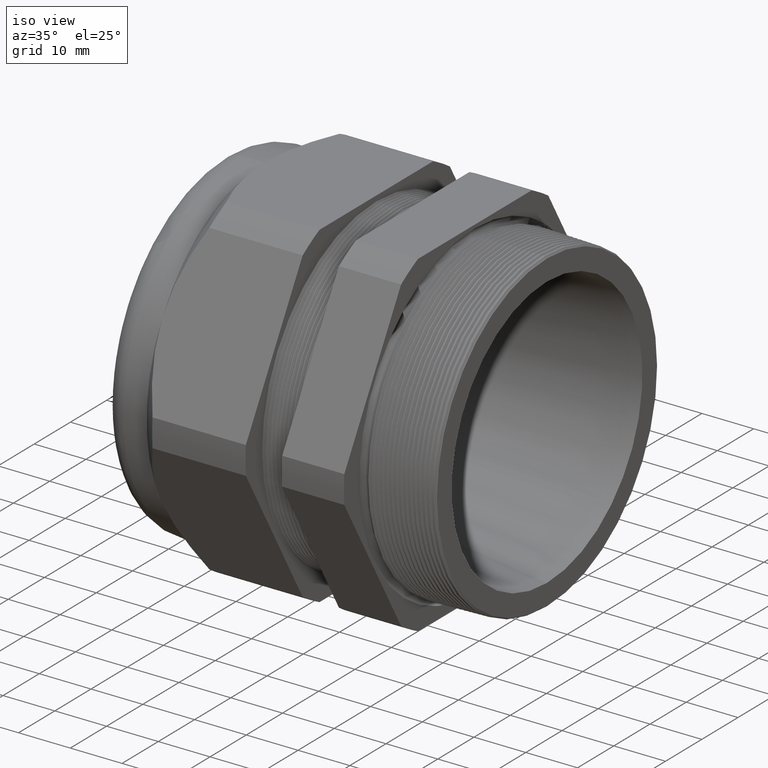
[diagram: clean part render]
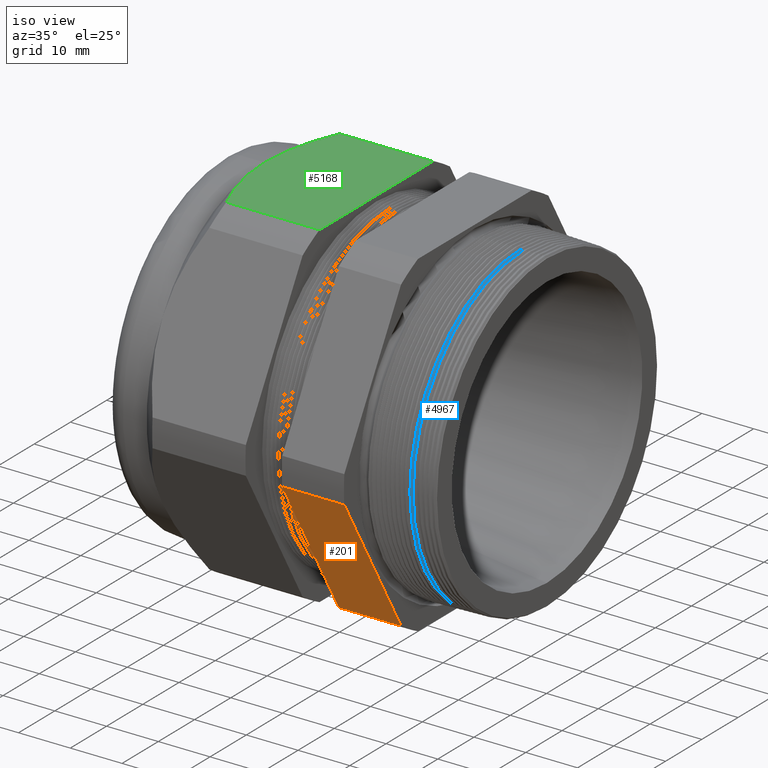
[diagram: same view with three faces highlighted in distinct colors, each labeled with its STEP entity id]
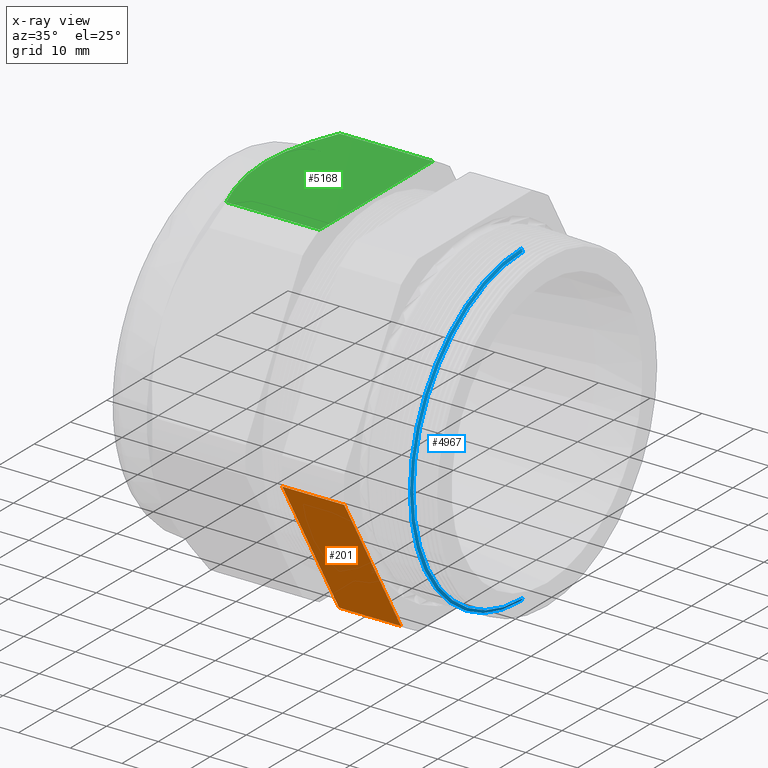
[diagram: x-ray of the same camera — body ghosted, the three highlighted faces saturated]
A machine part, iso view with three faces highlighted in distinct colors.
The next image is the same camera in x-ray (body ghosted, the three faces saturated) — at least one of them is partly hidden behind the body in this view.
Their STEP definitions:

[orange] entity #201 — the highlighted planar face has unit normal (0, -0.866, -0.5).
#180 = VERTEX_POINT ( 'NONE', #734 ) ;
#193 = VERTEX_POINT ( 'NONE', #712 ) ;
#194 = ORIENTED_EDGE ( 'NONE', *, *, #195, .F. ) ;
#195 = EDGE_CURVE ( 'NONE', #180, #193, #711, .T. ) ;
#196 = EDGE_LOOP ( 'NONE', ( #200, #199, #197, #194 ) ) ;
#197 = ORIENTED_EDGE ( 'NONE', *, *, #198, .T. ) ;
#198 = EDGE_CURVE ( 'NONE', #4686, #193, #770, .T. ) ;
#199 = ORIENTED_EDGE ( 'NONE', *, *, #4679, .F. ) ;
#200 = ORIENTED_EDGE ( 'NONE', *, *, #4412, .F. ) ;
#201 = ADVANCED_FACE ( 'NONE', ( #766 ), #765, .T. ) ;
#711 = LINE ( 'NONE', #773, #772 ) ;
#712 = CARTESIAN_POINT ( 'NONE',  ( -0.7824400000000001400, -1.416843767287496500, -0.1059546086707604700 ) ) ;
#734 = CARTESIAN_POINT ( 'NONE',  ( -0.7824400000000001400, -0.8001812664006651100, -1.174045391329239900 ) ) ;
#761 = DIRECTION ( 'NONE',  ( 0.0000000000000000000, 0.5000000000000000000, -0.8660254037844386000 ) ) ;
#762 = DIRECTION ( 'NONE',  ( 0.0000000000000000000, -0.8660254037844387100, -0.5000000000000001100 ) ) ;
#763 = CARTESIAN_POINT ( 'NONE',  ( 0.2400000000000001900, -0.8001812664006655600, -1.174045391329239500 ) ) ;
#764 = AXIS2_PLACEMENT_3D ( 'NONE', #763, #762, #761 ) ;
#765 = PLANE ( 'NONE',  #764 ) ;
#766 = FACE_OUTER_BOUND ( 'NONE', #196, .T. ) ;
#767 = DIRECTION ( 'NONE',  ( -1.000000000000000000, 0.0000000000000000000, 0.0000000000000000000 ) ) ;
#768 = VECTOR ( 'NONE', #767, 39.37007874015748100 ) ;
#769 = CARTESIAN_POINT ( 'NONE',  ( 0.2400000000000001900, -1.416843767287496500, -0.1059546086707604700 ) ) ;
#770 = LINE ( 'NONE', #769, #768 ) ;
#771 = DIRECTION ( 'NONE',  ( 0.0000000000000000000, -0.5000000000000000000, 0.8660254037844386000 ) ) ;
#772 = VECTOR ( 'NONE', #771, 39.37007874015748100 ) ;
#773 = CARTESIAN_POINT ( 'NONE',  ( -0.7824400000000001400, -0.4685125168440810200, -1.748512516844081400 ) ) ;
#1923 = LINE ( 'NONE', #2679, #4052 ) ;
#2200 = DIRECTION ( 'NONE',  ( -1.000000000000000000, 0.0000000000000000000, 0.0000000000000000000 ) ) ;
#2201 = VECTOR ( 'NONE', #2200, 39.37007874015748100 ) ;
#2202 = CARTESIAN_POINT ( 'NONE',  ( 0.2400000000000001900, -0.8001812664006651100, -1.174045391329239900 ) ) ;
#2203 = LINE ( 'NONE', #2202, #2201 ) ;
#2679 = CARTESIAN_POINT ( 'NONE',  ( -0.3100000000000000000, -0.4685125168440810200, -1.748512516844081400 ) ) ;
#2691 = CARTESIAN_POINT ( 'NONE',  ( -0.3100000000000000000, -0.8001812664006651100, -1.174045391329239900 ) ) ;
#2722 = CARTESIAN_POINT ( 'NONE',  ( -0.3100000000000000000, -1.416843767287496500, -0.1059546086707604700 ) ) ;
#4051 = DIRECTION ( 'NONE',  ( 0.0000000000000000000, 0.5000000000000000000, -0.8660254037844386000 ) ) ;
#4052 = VECTOR ( 'NONE', #4051, 39.37007874015748100 ) ;
#4412 = EDGE_CURVE ( 'NONE', #4662, #180, #2203, .T. ) ;
#4662 = VERTEX_POINT ( 'NONE', #2691 ) ;
#4679 = EDGE_CURVE ( 'NONE', #4686, #4662, #1923, .T. ) ;
#4686 = VERTEX_POINT ( 'NONE', #2722 ) ;

[blue] entity #4967 — the highlighted conical surface has half-angle 61.5 deg.
#267 = EDGE_CURVE ( 'NONE', #288, #340, #929, .T. ) ;
#270 = VERTEX_POINT ( 'NONE', #924 ) ;
#288 = VERTEX_POINT ( 'NONE', #942 ) ;
#289 = VERTEX_POINT ( 'NONE', #941 ) ;
#339 = EDGE_CURVE ( 'NONE', #289, #270, #1039, .T. ) ;
#340 = VERTEX_POINT ( 'NONE', #1035 ) ;
#924 = CARTESIAN_POINT ( 'NONE',  ( 0.04504799980645216700, 0.0000000000000000000, 1.211094649532191700 ) ) ;
#926 = DIRECTION ( 'NONE',  ( -0.4771587602596173400, 1.076240564057388800E-016, -0.8788171126619606100 ) ) ;
#927 = VECTOR ( 'NONE', #926, 39.37007874015748900 ) ;
#928 = CARTESIAN_POINT ( 'NONE',  ( 0.04000000000000004900, 1.494549044582627900E-016, -1.220391908608417600 ) ) ;
#929 = LINE ( 'NONE', #928, #927 ) ;
#941 = CARTESIAN_POINT ( 'NONE',  ( 0.05652926432092470600, 0.0000000000000000000, 1.189948790814587800 ) ) ;
#942 = CARTESIAN_POINT ( 'NONE',  ( 0.05652926432092470600, 1.470215081917216000E-016, -1.189948790814587800 ) ) ;
#1035 = CARTESIAN_POINT ( 'NONE',  ( 0.04504799980645216700, 1.483329842036504500E-016, -1.211094649532191700 ) ) ;
#1036 = DIRECTION ( 'NONE',  ( -0.4771587602596173400, 0.0000000000000000000, 0.8788171126619606100 ) ) ;
#1037 = VECTOR ( 'NONE', #1036, 39.37007874015748900 ) ;
#1038 = CARTESIAN_POINT ( 'NONE',  ( 0.04000000000000004900, 0.0000000000000000000, 1.220391908608417600 ) ) ;
#1039 = LINE ( 'NONE', #1038, #1037 ) ;
#2511 = DIRECTION ( 'NONE',  ( 0.0000000000000000000, 0.0000000000000000000, 1.000000000000000000 ) ) ;
#2512 = DIRECTION ( 'NONE',  ( 1.000000000000000000, 0.0000000000000000000, 0.0000000000000000000 ) ) ;
#2513 = CARTESIAN_POINT ( 'NONE',  ( 0.04504799980645216700, 0.0000000000000000000, 0.0000000000000000000 ) ) ;
#2514 = AXIS2_PLACEMENT_3D ( 'NONE', #2513, #2512, #2511 ) ;
#2515 = CIRCLE ( 'NONE', #2514, 1.211094649532191700 ) ;
#3099 = DIRECTION ( 'NONE',  ( 0.0000000000000000000, 0.0000000000000000000, -1.000000000000000000 ) ) ;
#3100 = DIRECTION ( 'NONE',  ( 1.000000000000000000, 0.0000000000000000000, 0.0000000000000000000 ) ) ;
#3101 = CARTESIAN_POINT ( 'NONE',  ( 0.05652926432092470600, 0.0000000000000000000, 0.0000000000000000000 ) ) ;
#3102 = AXIS2_PLACEMENT_3D ( 'NONE', #3101, #3100, #3099 ) ;
#3103 = CIRCLE ( 'NONE', #3102, 1.189948790814587800 ) ;
#3179 = DIRECTION ( 'NONE',  ( 0.0000000000000000000, 0.0000000000000000000, 1.000000000000000000 ) ) ;
#3180 = DIRECTION ( 'NONE',  ( -1.000000000000000000, 0.0000000000000000000, 0.0000000000000000000 ) ) ;
#3181 = AXIS2_PLACEMENT_3D ( 'NONE', #3184, #3180, #3179 ) ;
#3182 = CONICAL_SURFACE ( 'NONE', #3181, 1.220391908608417600, 1.073377489976502500 ) ;
#3184 = CARTESIAN_POINT ( 'NONE',  ( 0.04000000000000004900, 0.0000000000000000000, 0.0000000000000000000 ) ) ;
#3185 = FACE_OUTER_BOUND ( 'NONE', #4978, .T. ) ;
#4583 = EDGE_CURVE ( 'NONE', #270, #340, #2515, .T. ) ;
#4940 = ORIENTED_EDGE ( 'NONE', *, *, #4583, .T. ) ;
#4941 = ORIENTED_EDGE ( 'NONE', *, *, #339, .T. ) ;
#4942 = EDGE_CURVE ( 'NONE', #289, #288, #3103, .T. ) ;
#4959 = ORIENTED_EDGE ( 'NONE', *, *, #267, .F. ) ;
#4967 = ADVANCED_FACE ( 'NONE', ( #3185 ), #3182, .T. ) ;
#4978 = EDGE_LOOP ( 'NONE', ( #4959, #4988, #4941, #4940 ) ) ;
#4988 = ORIENTED_EDGE ( 'NONE', *, *, #4942, .F. ) ;

[green] entity #5168 — the highlighted planar face has unit normal (0, 0, 1).
#3449 = CARTESIAN_POINT ( 'NONE',  ( -1.892905966014041500, 0.2119800413602719000, 1.279999999999999800 ) ) ;
#3450 = CARTESIAN_POINT ( 'NONE',  ( -1.883320795785701900, 0.2639163659910923100, 1.279999999999999800 ) ) ;
#3451 = CARTESIAN_POINT ( 'NONE',  ( -1.858730573868090800, 0.3667216529074577300, 1.279999999999999800 ) ) ;
#3482 = DIRECTION ( 'NONE',  ( 1.000000000000000000, 0.0000000000000000000, 0.0000000000000000000 ) ) ;
#3483 = DIRECTION ( 'NONE',  ( 0.0000000000000000000, 0.0000000000000000000, 1.000000000000000000 ) ) ;
#3484 = CARTESIAN_POINT ( 'NONE',  ( 0.2400000000000001900, -0.6166625008868301700, 1.280000000000000000 ) ) ;
#3485 = AXIS2_PLACEMENT_3D ( 'NONE', #3484, #3483, #3482 ) ;
#3486 = PLANE ( 'NONE',  #3485 ) ;
#3492 = FACE_OUTER_BOUND ( 'NONE', #5176, .T. ) ;
#3493 = CARTESIAN_POINT ( 'NONE',  ( -1.058802799999999400, 0.6166625008868301700, 1.280000000000000000 ) ) ;
#3527 = CARTESIAN_POINT ( 'NONE',  ( -1.909291999999999500, 0.0000000000000000000, 1.280000000000000000 ) ) ;
#3541 = CARTESIAN_POINT ( 'NONE',  ( -1.768492000000000000, 0.6166625008868301700, 1.280000000000000000 ) ) ;
#3568 = DIRECTION ( 'NONE',  ( -1.000000000000000000, 0.0000000000000000000, 0.0000000000000000000 ) ) ;
#3569 = VECTOR ( 'NONE', #3568, 39.37007874015748100 ) ;
#3570 = CARTESIAN_POINT ( 'NONE',  ( 0.2400000000000001900, 0.6166625008868301700, 1.280000000000000000 ) ) ;
#3571 = LINE ( 'NONE', #3570, #3569 ) ;
#3667 = DIRECTION ( 'NONE',  ( -1.000000000000000000, 0.0000000000000000000, 0.0000000000000000000 ) ) ;
#3668 = VECTOR ( 'NONE', #3667, 39.37007874015748100 ) ;
#3669 = CARTESIAN_POINT ( 'NONE',  ( 0.2400000000000001900, -0.6166625008868306100, 1.279999999999999800 ) ) ;
#3671 = LINE ( 'NONE', #3669, #3668 ) ;
#3673 = CARTESIAN_POINT ( 'NONE',  ( -1.768492000000000200, -0.6166625008868306100, 1.279999999999999800 ) ) ;
#3675 = DIRECTION ( 'NONE',  ( 0.0000000000000000000, -1.000000000000000000, 0.0000000000000000000 ) ) ;
#3676 = VECTOR ( 'NONE', #3675, 39.37007874015748100 ) ;
#3677 = CARTESIAN_POINT ( 'NONE',  ( -1.058802799999999400, 1.240000000000000000, 1.280000000000000000 ) ) ;
#3678 = LINE ( 'NONE', #3677, #3676 ) ;
#3683 = CARTESIAN_POINT ( 'NONE',  ( -1.058802799999999400, -0.6166625008868306100, 1.279999999999999800 ) ) ;
#3696 = CARTESIAN_POINT ( 'NONE',  ( -1.843728725011120500, 0.4175912459415935300, 1.279999999999999800 ) ) ;
#3697 = CARTESIAN_POINT ( 'NONE',  ( -1.817760468264914900, 0.4932131617928015000, 1.279999999999999800 ) ) ;
#3698 = CARTESIAN_POINT ( 'NONE',  ( -1.808517794523389500, 0.5183220260809854300, 1.279999999999999800 ) ) ;
#3699 = CARTESIAN_POINT ( 'NONE',  ( -1.789160968299050800, 0.5678795841928971900, 1.280000000000000000 ) ) ;
#3700 = CARTESIAN_POINT ( 'NONE',  ( -1.779027095716830800, 0.5923894763832372500, 1.280000000000000000 ) ) ;
#3701 = CARTESIAN_POINT ( 'NONE',  ( -1.768492000000000000, 0.6166625008868301700, 1.280000000000000000 ) ) ;
#3704 = B_SPLINE_CURVE_WITH_KNOTS ( 'NONE', 3,
 ( #3701, #3700, #3699, #3698, #3697, #3696, #3451, #3450, #3449, #5062, #4888, #4890, #4409, #4414 ),
 .UNSPECIFIED., .F., .F.,
 ( 4, 2, 2, 2, 2, 2, 4 ),
 ( 0.02514202277783124400, 0.02714289194006080900, 0.02914376110229037100, 0.03314549942674950600, 0.03714723775120863700, 0.03914810691343820200, 0.04114897607566777400 ),
 .UNSPECIFIED. ) ;
#3707 = CARTESIAN_POINT ( 'NONE',  ( -1.768492000000000200, -0.6166625008868306100, 1.279999999999999800 ) ) ;
#3708 = CARTESIAN_POINT ( 'NONE',  ( -1.789554581802118300, -0.5681339845891570900, 1.279999999999999800 ) ) ;
#3709 = CARTESIAN_POINT ( 'NONE',  ( -1.809004393605264400, -0.5187018609897641200, 1.280000000000000000 ) ) ;
#3710 = CARTESIAN_POINT ( 'NONE',  ( -1.843758312877920200, -0.4175148469308329600, 1.279999999999999800 ) ) ;
#3711 = CARTESIAN_POINT ( 'NONE',  ( -1.858821408618014100, -0.3664055182703324600, 1.280000000000000000 ) ) ;
#3712 = CARTESIAN_POINT ( 'NONE',  ( -1.895731695340017400, -0.2119016256155369400, 1.280000000000000000 ) ) ;
#3713 = CARTESIAN_POINT ( 'NONE',  ( -1.909291999999999800, -0.1070721285301913000, 1.280000000000000200 ) ) ;
#3714 = CARTESIAN_POINT ( 'NONE',  ( -1.909291999999999500, 0.0000000000000000000, 1.280000000000000000 ) ) ;
#3715 = B_SPLINE_CURVE_WITH_KNOTS ( 'NONE', 3,
 ( #3714, #3713, #3712, #3711, #3710, #3709, #3708, #3707 ),
 .UNSPECIFIED., .F., .F.,
 ( 4, 2, 2, 4 ),
 ( 0.04114897607566777400, 0.04916620051820241900, 0.05317481273946973000, 0.05718342496073704900 ),
 .UNSPECIFIED. ) ;
#4409 = CARTESIAN_POINT ( 'NONE',  ( -1.909291999999999500, 0.02672213078802234200, 1.280000000000000000 ) ) ;
#4414 = CARTESIAN_POINT ( 'NONE',  ( -1.909291999999999500, 0.0000000000000000000, 1.280000000000000000 ) ) ;
#4888 = CARTESIAN_POINT ( 'NONE',  ( -1.905123383299628200, 0.1067381207527689800, 1.280000000000000000 ) ) ;
#4890 = CARTESIAN_POINT ( 'NONE',  ( -1.908446342151620900, 0.05356854984720004600, 1.280000000000000000 ) ) ;
#5062 = CARTESIAN_POINT ( 'NONE',  ( -1.902648074829802000, 0.1331626350846556200, 1.280000000000000000 ) ) ;
#5166 = VERTEX_POINT ( 'NONE', #3493 ) ;
#5168 = ADVANCED_FACE ( 'NONE', ( #3492 ), #3486, .T. ) ;
#5172 = ORIENTED_EDGE ( 'NONE', *, *, #5191, .T. ) ;
#5176 = EDGE_LOOP ( 'NONE', ( #5172, #5286, #5290, #5282, #5274 ) ) ;
#5180 = VERTEX_POINT ( 'NONE', #3527 ) ;
#5191 = EDGE_CURVE ( 'NONE', #5166, #5206, #3571, .T. ) ;
#5206 = VERTEX_POINT ( 'NONE', #3541 ) ;
#5271 = VERTEX_POINT ( 'NONE', #3683 ) ;
#5274 = ORIENTED_EDGE ( 'NONE', *, *, #5275, .F. ) ;
#5275 = EDGE_CURVE ( 'NONE', #5166, #5271, #3678, .T. ) ;
#5277 = VERTEX_POINT ( 'NONE', #3673 ) ;
#5280 = EDGE_CURVE ( 'NONE', #5271, #5277, #3671, .T. ) ;
#5281 = EDGE_CURVE ( 'NONE', #5180, #5277, #3715, .T. ) ;
#5282 = ORIENTED_EDGE ( 'NONE', *, *, #5280, .F. ) ;
#5284 = EDGE_CURVE ( 'NONE', #5206, #5180, #3704, .T. ) ;
#5286 = ORIENTED_EDGE ( 'NONE', *, *, #5284, .T. ) ;
#5290 = ORIENTED_EDGE ( 'NONE', *, *, #5281, .T. ) ;